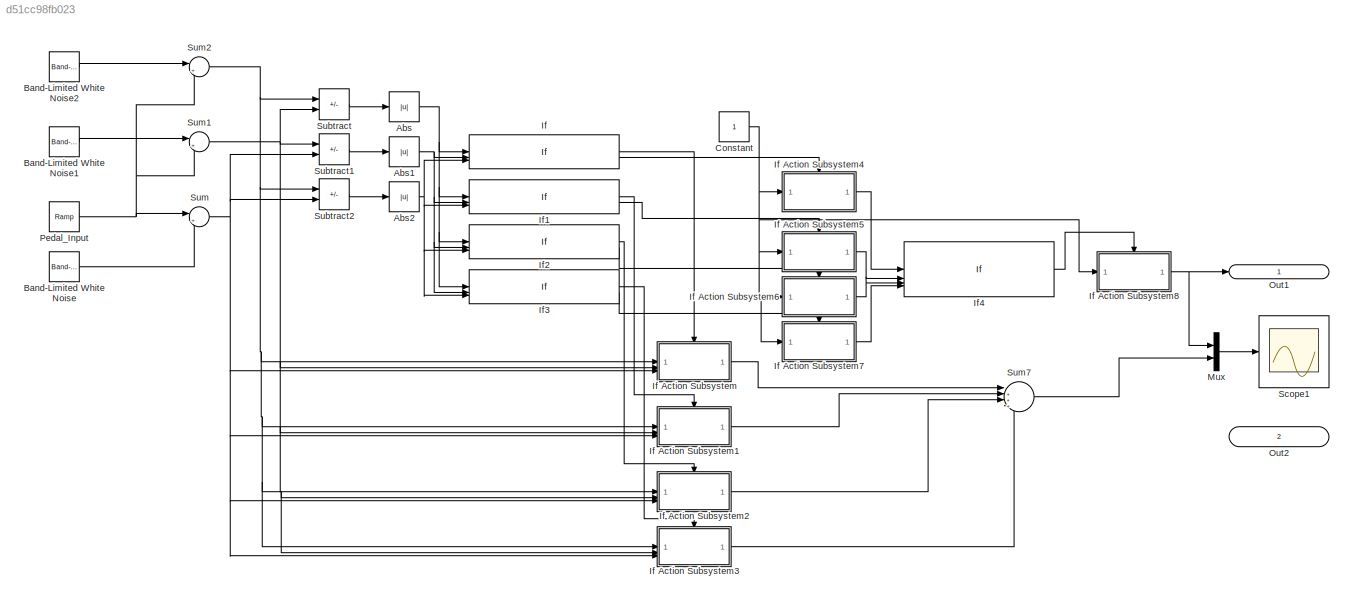
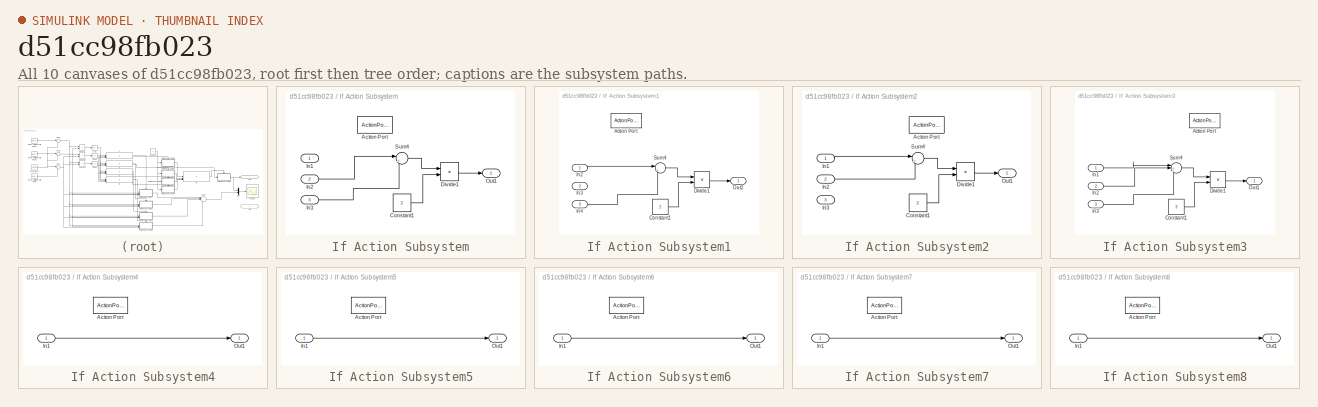
[diagram: thumbnail index - all 10 canvases of the model, root first then tree order]
MODEL slx_d51cc98fb023
KIND model
CONFIG AbsTol = auto
CONFIG EnableMultiTasking = off
CONFIG FixedStep = 0.001
CONFIG MaxStep = auto
CONFIG MinStep = auto
CONFIG RelTol = 1e-3
CONFIG SampleTimeConstraint = Unconstrained
CONFIG SolverName = FixedStepDiscrete
CONFIG StartTime = 0.0
CONFIG StopTime = 10
BLOCK [Abs] Abs
  SaturateOnIntegerOverflow = off
BLOCK [Abs] Abs1
  SaturateOnIntegerOverflow = off
BLOCK [Abs] Abs2
  SaturateOnIntegerOverflow = off
BLOCK [Reference] Band-Limited White Noise  REF=simulink/Sources/Band-Limited
White Noise
  SourceBlock = simulink/Sources/Band-Limited\nWhite Noise
  SourceType = Band-Limited White Noise.
BLOCK [Reference] Band-Limited White Noise1  REF=simulink/Sources/Band-Limited
White Noise
  SourceBlock = simulink/Sources/Band-Limited\nWhite Noise
  SourceType = Band-Limited White Noise.
BLOCK [Reference] Band-Limited White Noise2  REF=simulink/Sources/Band-Limited
White Noise
  SourceBlock = simulink/Sources/Band-Limited\nWhite Noise
  SourceType = Band-Limited White Noise.
BLOCK [Constant] Constant
BLOCK [If] If
  IfExpression = u1<0.1 & u2>=0.1 & u3>=0.1
  NumInputs = 3
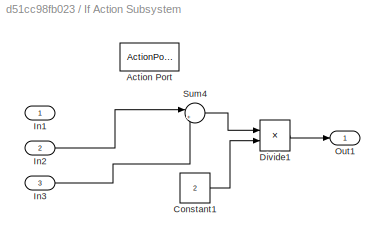
BLOCK [SubSystem] If Action Subsystem
  TreatAsAtomicUnit = on
BLOCK [ActionPort] If Action Subsystem/Action Port
  ActionPortLabel = if(u1<0.1 & u2>=0.1 & u3>=0.1)
BLOCK [Constant] If Action Subsystem/Constant1
  Value = 2
BLOCK [Product] If Action Subsystem/Divide1
  Inputs = */
BLOCK [Inport] If Action Subsystem/In1
BLOCK [Inport] If Action Subsystem/In2
  Port = 2
BLOCK [Inport] If Action Subsystem/In3
  Port = 3
BLOCK [Outport] If Action Subsystem/Out1
BLOCK [Sum] If Action Subsystem/Sum4
  Inputs = |++
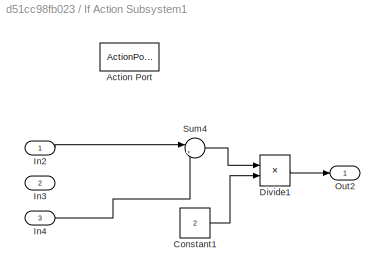
BLOCK [SubSystem] If Action Subsystem1
  TreatAsAtomicUnit = on
BLOCK [ActionPort] If Action Subsystem1/Action Port
  ActionPortLabel = if(u1>=0.1 & u2<0.1 & u3>=0.1)
BLOCK [Constant] If Action Subsystem1/Constant1
  Value = 2
BLOCK [Product] If Action Subsystem1/Divide1
  Inputs = */
BLOCK [Inport] If Action Subsystem1/In2
BLOCK [Inport] If Action Subsystem1/In3
  Port = 2
BLOCK [Inport] If Action Subsystem1/In4
  Port = 3
BLOCK [Outport] If Action Subsystem1/Out2
BLOCK [Sum] If Action Subsystem1/Sum4
  Inputs = |++
BLOCK [SubSystem] If Action Subsystem2
  TreatAsAtomicUnit = on
BLOCK [ActionPort] If Action Subsystem2/Action Port
  ActionPortLabel = if(u1>=0.1 & u2>=0.1 & u3<0.1)
BLOCK [Constant] If Action Subsystem2/Constant1
  Value = 2
BLOCK [Product] If Action Subsystem2/Divide1
  Inputs = */
BLOCK [Inport] If Action Subsystem2/In1
BLOCK [Inport] If Action Subsystem2/In2
  Port = 2
BLOCK [Inport] If Action Subsystem2/In3
  Port = 3
BLOCK [Outport] If Action Subsystem2/Out1
BLOCK [Sum] If Action Subsystem2/Sum4
  Inputs = |++
BLOCK [SubSystem] If Action Subsystem3
  TreatAsAtomicUnit = on
BLOCK [ActionPort] If Action Subsystem3/Action Port
  ActionPortLabel = if(u1>=0.1 & u2>=0.1 & u3>=0.1)
BLOCK [Constant] If Action Subsystem3/Constant1
  Value = 3
BLOCK [Product] If Action Subsystem3/Divide1
  Inputs = */
BLOCK [Inport] If Action Subsystem3/In1
BLOCK [Inport] If Action Subsystem3/In2
  Port = 2
BLOCK [Inport] If Action Subsystem3/In3
  Port = 3
BLOCK [Outport] If Action Subsystem3/Out1
BLOCK [Sum] If Action Subsystem3/Sum4
  Inputs = |+++
BLOCK [SubSystem] If Action Subsystem4
  TreatAsAtomicUnit = on
BLOCK [ActionPort] If Action Subsystem4/Action Port
  ActionPortLabel = else
BLOCK [Inport] If Action Subsystem4/In1
BLOCK [Outport] If Action Subsystem4/Out1
BLOCK [SubSystem] If Action Subsystem5
  TreatAsAtomicUnit = on
BLOCK [ActionPort] If Action Subsystem5/Action Port
  ActionPortLabel = else
BLOCK [Inport] If Action Subsystem5/In1
BLOCK [Outport] If Action Subsystem5/Out1
BLOCK [SubSystem] If Action Subsystem6
  TreatAsAtomicUnit = on
BLOCK [ActionPort] If Action Subsystem6/Action Port
  ActionPortLabel = else
BLOCK [Inport] If Action Subsystem6/In1
BLOCK [Outport] If Action Subsystem6/Out1
BLOCK [SubSystem] If Action Subsystem7
  TreatAsAtomicUnit = on
BLOCK [ActionPort] If Action Subsystem7/Action Port
  ActionPortLabel = else
BLOCK [Inport] If Action Subsystem7/In1
BLOCK [Outport] If Action Subsystem7/Out1
BLOCK [SubSystem] If Action Subsystem8
  TreatAsAtomicUnit = on
BLOCK [ActionPort] If Action Subsystem8/Action Port
  ActionPortLabel = if(u1>0 & u2>0 & u3>0 & u4>0)
BLOCK [Inport] If Action Subsystem8/In1
BLOCK [Outport] If Action Subsystem8/Out1
BLOCK [If] If1
  IfExpression = u1>=0.1 & u2<0.1 & u3>=0.1
  NumInputs = 3
BLOCK [If] If2
  IfExpression = u1>=0.1 & u2>=0.1 & u3<0.1
  NumInputs = 3
BLOCK [If] If3
  IfExpression = u1>=0.1 & u2>=0.1 & u3>=0.1
  NumInputs = 3
BLOCK [If] If4
  IfExpression = u1>0 & u2>0 & u3>0 & u4>0
  NumInputs = 4
  ShowElse = off
BLOCK [Mux] Mux
  DisplayOption = bar
  Inputs = 2
BLOCK [Outport] Out1
  IconDisplay = Signal name
  SignalName = Shut Down Circuit
BLOCK [Outport] Out2
  IconDisplay = Signal name
  Port = 2
  SignalName = Pedal Position Output
BLOCK [Reference] Pedal_Input  REF=simulink/Sources/Ramp
  SourceBlock = simulink/Sources/Ramp
  SourceType = Ramp
BLOCK [Scope] Scope1
  Floating = off
  NumInputPorts = 1
  ScopeSpecificationString = Simulink.scopes.TimeScopeBlockCfg('CurrentConfiguration', extmgr.ConfigurationSet(extmgr.Configuration('Core','General UI',true),extmgr.Configuration('Core','Source UI',true),extmgr.Configuration('Sources','WiredSimulink',true,'DataLoggingVariableName','ScopeData1'),extmgr.Configuration('Visuals','Time Domain',true,'SerializedDisplays',{struct('MinYLimReal','-42.02004','MaxYLimReal','15.32867','YL...<+1587ch>
BLOCK [Sum] Subtract
  IconShape = rectangular
  Inputs = +-
BLOCK [Sum] Subtract1
  IconShape = rectangular
  Inputs = +-
BLOCK [Sum] Subtract2
  IconShape = rectangular
  Inputs = +-
BLOCK [Sum] Sum
  Inputs = |++
BLOCK [Sum] Sum1
  Inputs = |++
BLOCK [Sum] Sum2
  Inputs = |++
BLOCK [Sum] Sum7
  Inputs = |++++
NET Abs1:1 -> If1:2, If2:2, If3:2, If:2
NET Abs2:1 -> If1:3, If2:3, If3:3, If:3
NET Abs:1 -> If1:1, If2:1, If3:1, If:1
LINE Band-Limited White Noise1:1 -> Sum1:1
LINE Band-Limited White Noise2:1 -> Sum2:1
LINE Band-Limited White Noise:1 -> Sum:2
NET Constant:1 -> If Action Subsystem4:1, If Action Subsystem5:1, If Action Subsystem6:1, If Action Subsystem7:1, If Action Subsystem8:1
LINE If Action Subsystem/Constant1:1 -> If Action Subsystem/Divide1:2
LINE If Action Subsystem/Divide1:1 -> If Action Subsystem/Out1:1
LINE If Action Subsystem/In2:1 -> If Action Subsystem/Sum4:1
LINE If Action Subsystem/In3:1 -> If Action Subsystem/Sum4:2
LINE If Action Subsystem/Sum4:1 -> If Action Subsystem/Divide1:1
LINE If Action Subsystem1/Constant1:1 -> If Action Subsystem1/Divide1:2
LINE If Action Subsystem1/Divide1:1 -> If Action Subsystem1/Out2:1
LINE If Action Subsystem1/In2:1 -> If Action Subsystem1/Sum4:1
LINE If Action Subsystem1/In4:1 -> If Action Subsystem1/Sum4:2
LINE If Action Subsystem1/Sum4:1 -> If Action Subsystem1/Divide1:1
LINE If Action Subsystem1:1 -> Sum7:2
LINE If Action Subsystem2/Constant1:1 -> If Action Subsystem2/Divide1:2
LINE If Action Subsystem2/Divide1:1 -> If Action Subsystem2/Out1:1
LINE If Action Subsystem2/In1:1 -> If Action Subsystem2/Sum4:1
LINE If Action Subsystem2/In2:1 -> If Action Subsystem2/Sum4:2
LINE If Action Subsystem2/Sum4:1 -> If Action Subsystem2/Divide1:1
LINE If Action Subsystem2:1 -> Sum7:3
LINE If Action Subsystem3/Constant1:1 -> If Action Subsystem3/Divide1:2
LINE If Action Subsystem3/Divide1:1 -> If Action Subsystem3/Out1:1
LINE If Action Subsystem3/In1:1 -> If Action Subsystem3/Sum4:1
LINE If Action Subsystem3/In2:1 -> If Action Subsystem3/Sum4:2
LINE If Action Subsystem3/In3:1 -> If Action Subsystem3/Sum4:3
LINE If Action Subsystem3/Sum4:1 -> If Action Subsystem3/Divide1:1
LINE If Action Subsystem3:1 -> Sum7:4
LINE If Action Subsystem4/In1:1 -> If Action Subsystem4/Out1:1
LINE If Action Subsystem4:1 -> If4:1
LINE If Action Subsystem5/In1:1 -> If Action Subsystem5/Out1:1
LINE If Action Subsystem5:1 -> If4:2
LINE If Action Subsystem6/In1:1 -> If Action Subsystem6/Out1:1
LINE If Action Subsystem6:1 -> If4:3
LINE If Action Subsystem7/In1:1 -> If Action Subsystem7/Out1:1
LINE If Action Subsystem7:1 -> If4:4
LINE If Action Subsystem8/In1:1 -> If Action Subsystem8/Out1:1
NET If Action Subsystem8:1 -> Mux:1, Out1:1
LINE If Action Subsystem:1 -> Sum7:1
LINE If1:1 -> If Action Subsystem1:ifaction
LINE If1:2 -> If Action Subsystem5:ifaction
LINE If2:1 -> If Action Subsystem2:ifaction
LINE If2:2 -> If Action Subsystem6:ifaction
LINE If3:1 -> If Action Subsystem3:ifaction
LINE If3:2 -> If Action Subsystem7:ifaction
LINE If4:1 -> If Action Subsystem8:ifaction
LINE If:1 -> If Action Subsystem:ifaction
LINE If:2 -> If Action Subsystem4:ifaction
LINE Mux:1 -> Scope1:1
NET Pedal_Input:1 -> Sum1:2, Sum2:2, Sum:1
LINE Subtract1:1 -> Abs1:1
LINE Subtract2:1 -> Abs2:1
LINE Subtract:1 -> Abs:1
NET Sum1:1 -> If Action Subsystem1:2, If Action Subsystem2:2, If Action Subsystem3:2, If Action Subsystem:2, Subtract1:1, Subtract:2
NET Sum2:1 -> If Action Subsystem1:1, If Action Subsystem2:1, If Action Subsystem3:1, If Action Subsystem:1, Subtract2:1, Subtract:1
LINE Sum7:1 -> Mux:2
NET Sum:1 -> If Action Subsystem1:3, If Action Subsystem2:3, If Action Subsystem3:3, If Action Subsystem:3, Subtract1:2, Subtract2:2
note: NET lines group one-source signal fan-out (src -> all destinations, sorted); 1:1 wires keep LINE
